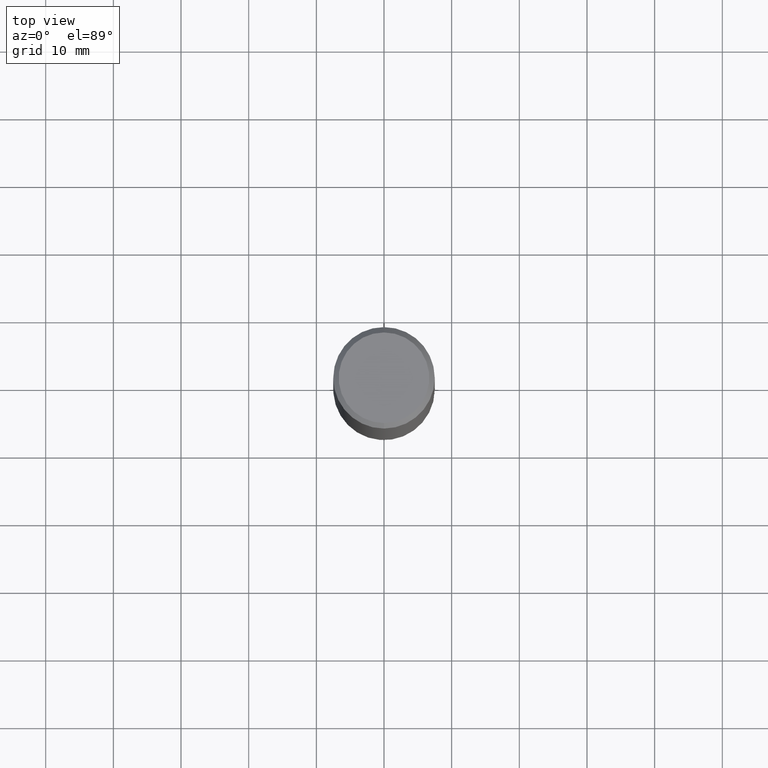
[diagram: clean part render]
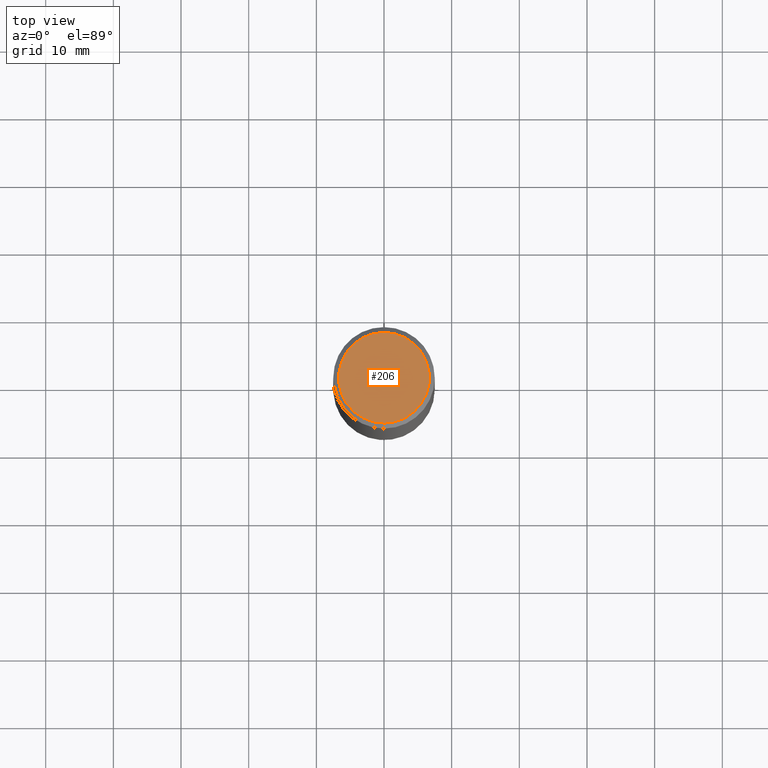
[diagram: same view with one face highlighted and labeled with its STEP entity id]
A machine part, top view. The second image highlights one B-rep face of the part: STEP entity #206.
In plain terms, the highlighted planar face has unit normal (-0, 0, 1).
Its self-contained STEP definition (entity closure, byte-faithful):
#206=ADVANCED_FACE('',(#518),#519,.T.);
#352=EDGE_CURVE('',#370,#408,#681,.T.);
#370=VERTEX_POINT('',#700);
#408=VERTEX_POINT('',#740);
#416=EDGE_CURVE('',#408,#370,#748,.T.);
#518=FACE_OUTER_BOUND('',#858,.T.);
#519=PLANE('',#859);
#681=CIRCLE('',#1290,6.7);
#700=CARTESIAN_POINT('',(0.0,6.7,0.0));
#740=CARTESIAN_POINT('',(8.20486257060993E-016,-6.7,0.0));
#748=CIRCLE('',#1427,6.7);
#858=EDGE_LOOP('',(#1620,#1621));
#859=AXIS2_PLACEMENT_3D('',#1622,#1623,#1624);
#1290=AXIS2_PLACEMENT_3D('',#1807,#1808,#1809);
#1427=AXIS2_PLACEMENT_3D('',#1859,#1860,#1861);
#1620=ORIENTED_EDGE('',*,*,#352,.F.);
#1621=ORIENTED_EDGE('',*,*,#416,.F.);
#1622=CARTESIAN_POINT('',(0.0,3.35,0.0));
#1623=DIRECTION('',(-0.0,0.0,1.0));
#1624=DIRECTION('',(0.0,-1.0,0.0));
#1807=CARTESIAN_POINT('',(0.0,0.0,0.0));
#1808=DIRECTION('',(0.0,0.0,-1.0));
#1809=DIRECTION('',(0.0,1.0,0.0));
#1859=CARTESIAN_POINT('',(0.0,0.0,0.0));
#1860=DIRECTION('',(0.0,0.0,-1.0));
#1861=DIRECTION('',(0.0,1.0,0.0));